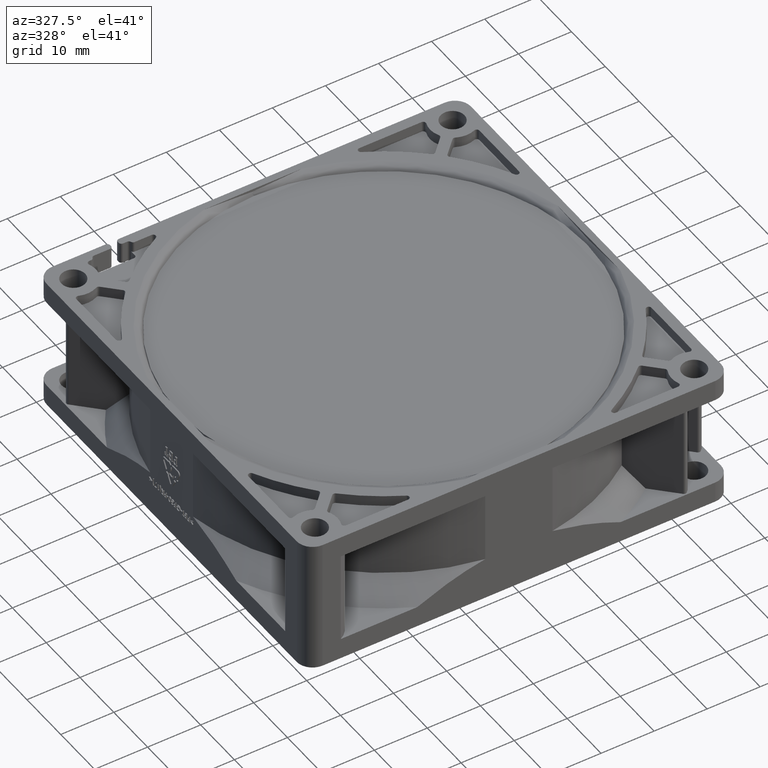
[diagram: clean part render]
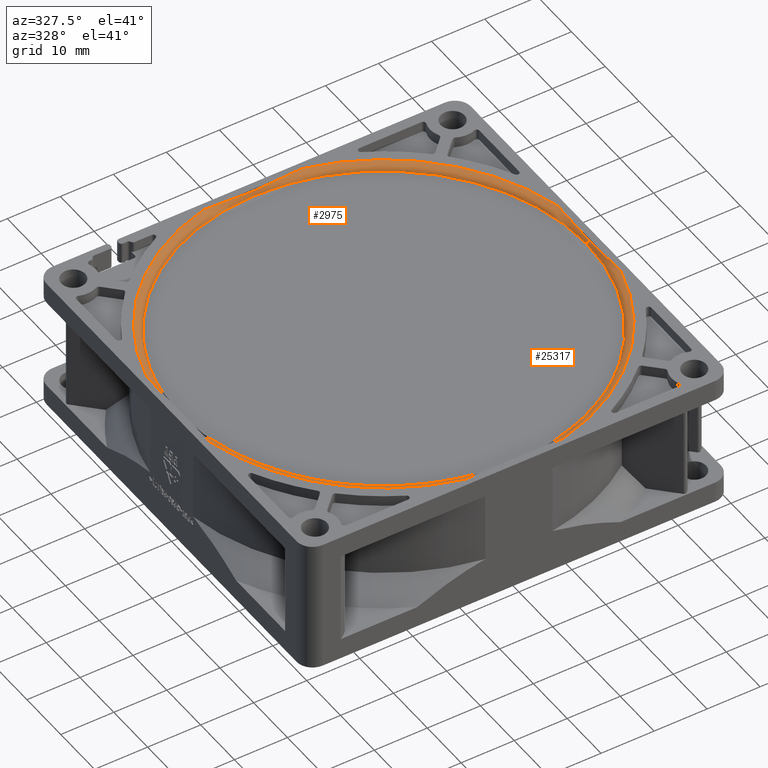
[diagram: same view with one multi-face feature highlighted, each face labeled with its STEP entity id]
A machine part, auxiliary view. The highlighted faces form ONE feature: a constant-radius fillet chain: 2 tangent blend faces with common blend radius 1.5 mm. The faces share edges in the B-rep.
Their STEP definitions:
[1] entity #2975 (Torus):
#365 = CARTESIAN_POINT ( 'NONE',  ( -3.258034867053625200, 38.69999999999997400, -0.3542504120716003000 ) ) ;
#480 = CARTESIAN_POINT ( 'NONE',  ( 1.340665072476778400, 38.69999999999998200, -0.4577314056132381600 ) ) ;
#599 = CARTESIAN_POINT ( 'NONE',  ( 6.109635771462917500, 38.69999999999998200, -0.1312076343806652700 ) ) ;
#1092 = ORIENTED_EDGE ( 'NONE', *, *, #4077, .T. ) ;
#1872 = CARTESIAN_POINT ( 'NONE',  ( 38.70000000000002400, 8.516450220362521900, 2.795208725939191100E-017 ) ) ;
#2362 = CARTESIAN_POINT ( 'NONE',  ( 38.70000000000002400, 5.418920404492308900, -0.1849911725634776300 ) ) ;
#2693 = AXIS2_PLACEMENT_3D ( 'NONE', #6830, #4238, #13223 ) ;
#2975 = ADVANCED_FACE ( 'NONE', ( #34482 ), #11353, .T. ) ;
#3445 = CARTESIAN_POINT ( 'NONE',  ( -38.69999999999997400, 7.740466828925725900, -3.194161244095965400E-015 ) ) ;
#3921 = DIRECTION ( 'NONE',  ( 1.000000000000000000, -8.881784197001252300E-016, 0.0000000000000000000 ) ) ;
#4077 = EDGE_CURVE ( 'NONE', #36626, #33623, #35030, .T. ) ;
#4238 = DIRECTION ( 'NONE',  ( 0.0000000000000000000, 0.0000000000000000000, 1.000000000000000000 ) ) ;
#4493 = CARTESIAN_POINT ( 'NONE',  ( -9.292470069900737400, 38.69999999999998200, 0.0000000000000000000 ) ) ;
#5078 = AXIS2_PLACEMENT_3D ( 'NONE', #23916, #32867, #3921 ) ;
#5547 = EDGE_CURVE ( 'NONE', #14881, #26321, #29705, .T. ) ;
#5650 = CARTESIAN_POINT ( 'NONE',  ( -38.69999999999997400, 0.04849910030040222000, -0.4801715099627396600 ) ) ;
#6179 = CARTESIAN_POINT ( 'NONE',  ( 0.1460072031836291400, 38.69999999999998200, -0.4800373347494401600 ) ) ;
#6258 = CARTESIAN_POINT ( 'NONE',  ( -38.69999999999998200, 4.739383112700255400E-015, -0.4801960972814547900 ) ) ;
#6379 = CARTESIAN_POINT ( 'NONE',  ( -38.69999999999998200, 0.9694945233602434400, -0.4677301955548452400 ) ) ;
#6531 = CARTESIAN_POINT ( 'NONE',  ( 0.0000000000000000000, 0.0000000000000000000, -1.500000000000000000 ) ) ;
#6704 = CARTESIAN_POINT ( 'NONE',  ( 38.70000000000002400, 9.292470069900554500, 0.0000000000000000000 ) ) ;
#6830 = CARTESIAN_POINT ( 'NONE',  ( 0.0000000000000000000, 0.0000000000000000000, -1.500000000000000000 ) ) ;
#7097 = CIRCLE ( 'NONE', #5078, 39.79999999999999700 ) ;
#7381 = DIRECTION ( 'NONE',  ( -1.000000000000000000, 1.224646799147354400E-016, 0.0000000000000000000 ) ) ;
#7925 = CARTESIAN_POINT ( 'NONE',  ( 38.70000000000002400, 3.872285616052768100, -0.3057899527935134000 ) ) ;
#8682 = CARTESIAN_POINT ( 'NONE',  ( 7.698382108292417300, 38.69999999999998900, -3.198396408832238900E-015 ) ) ;
#8760 = B_SPLINE_CURVE_WITH_KNOTS ( 'NONE', 3,
 ( #28896, #3445, #11907, #36619, #16845, #23296, #29006, #6379, #31756, #14727, #20427, #36755, #19685, #5650, #14132, #6258 ),
 .UNSPECIFIED., .F., .F.,
 ( 4, 2, 2, 2, 2, 1, 1, 2, 4 ),
 ( 0.05003844255664827200, 0.05445057701796646200, 0.05665664424862555700, 0.05775967786395510400, 0.05831119467161988100, 0.05858695307545226700, 0.05872483227736845900, 0.05879377187832655900, 0.05886271147928465200 ),
 .UNSPECIFIED. ) ;
#8800 = CARTESIAN_POINT ( 'NONE',  ( 9.292470069900675300, 38.69999999999998200, 0.0000000000000000000 ) ) ;
#8887 = CARTESIAN_POINT ( 'NONE',  ( 9.292470069900675300, 38.69999999999998200, 0.0000000000000000000 ) ) ;
#9138 = DIRECTION ( 'NONE',  ( 0.0000000000000000000, -1.000000000000000000, 0.0000000000000000000 ) ) ;
#9386 = CARTESIAN_POINT ( 'NONE',  ( -38.69999999999998200, 4.739383112700255400E-015, -0.4801960972814547900 ) ) ;
#9514 = DIRECTION ( 'NONE',  ( 1.000000000000000000, 0.0000000000000000000, 0.0000000000000000000 ) ) ;
#10303 = CIRCLE ( 'NONE', #21745, 38.29999999999999700 ) ;
#10694 = CARTESIAN_POINT ( 'NONE',  ( 38.70000000000003100, 1.550565181978010400, -0.4536331188122508200 ) ) ;
#10846 = ORIENTED_EDGE ( 'NONE', *, *, #23281, .F. ) ;
#11353 = TOROIDAL_SURFACE ( 'NONE', #2693, 39.79999999999999700, 1.500000000000000000 ) ;
#11560 = CARTESIAN_POINT ( 'NONE',  ( -1.749761578573276500, 38.69999999999998200, -0.4444141831759468900 ) ) ;
#11907 = CARTESIAN_POINT ( 'NONE',  ( -38.69999999999996700, 6.193531738328168500, -0.1244902158514861500 ) ) ;
#12295 = DIRECTION ( 'NONE',  ( 0.0000000000000000000, 0.0000000000000000000, 1.000000000000000000 ) ) ;
#13223 = DIRECTION ( 'NONE',  ( 1.000000000000000000, 0.0000000000000000000, 0.0000000000000000000 ) ) ;
#14132 = CARTESIAN_POINT ( 'NONE',  ( -38.69999999999998200, 0.02299599854013815300, -0.4801960972814260900 ) ) ;
#14409 = CARTESIAN_POINT ( 'NONE',  ( -0.9950577990559686900, 38.69999999999998200, -0.4743628569072036400 ) ) ;
#14605 = EDGE_CURVE ( 'NONE', #21907, #23139, #27534, .T. ) ;
#14727 = CARTESIAN_POINT ( 'NONE',  ( -38.69999999999999600, 0.4848732385102778600, -0.4770575460722602500 ) ) ;
#14758 = CARTESIAN_POINT ( 'NONE',  ( 3.726072529971128100, 38.69999999999998900, -0.3171194841000852200 ) ) ;
#14881 = VERTEX_POINT ( 'NONE', #9386 ) ;
#15301 = ORIENTED_EDGE ( 'NONE', *, *, #34448, .F. ) ;
#16021 = CARTESIAN_POINT ( 'NONE',  ( 38.70000000000003100, 6.192220242297635100, -0.1243046163826284200 ) ) ;
#16845 = CARTESIAN_POINT ( 'NONE',  ( -38.69999999999998200, 3.099352093352831300, -0.3658692131198464900 ) ) ;
#17369 = CARTESIAN_POINT ( 'NONE',  ( -4.011521150952588300, 38.69999999999998200, -0.2949095698550433000 ) ) ;
#17623 = CARTESIAN_POINT ( 'NONE',  ( 0.2456155492024766600, 38.69999999999998200, -0.4794932200373561200 ) ) ;
#17707 = DIRECTION ( 'NONE',  ( 0.0000000000000000000, 0.0000000000000000000, -1.000000000000000000 ) ) ;
#17855 = CARTESIAN_POINT ( 'NONE',  ( 38.70000000000002400, 1.710569414459005200E-043, -0.4801960972814097200 ) ) ;
#18663 = EDGE_LOOP ( 'NONE', ( #30208, #25216, #10846, #15301, #1092, #27206, #19329, #23835 ) ) ;
#18883 = CARTESIAN_POINT ( 'NONE',  ( 38.70000000000003800, 0.7757803307396098400, -0.4801960972813815200 ) ) ;
#19329 = ORIENTED_EDGE ( 'NONE', *, *, #36501, .T. ) ;
#19401 = AXIS2_PLACEMENT_3D ( 'NONE', #27527, #24648, #7381 ) ;
#19685 = CARTESIAN_POINT ( 'NONE',  ( -38.69999999999998200, 0.09699519897396874400, -0.4800731929516206500 ) ) ;
#19709 = VERTEX_POINT ( 'NONE', #29234 ) ;
#20155 = AXIS2_PLACEMENT_3D ( 'NONE', #36528, #25079, #27960 ) ;
#20231 = CARTESIAN_POINT ( 'NONE',  ( 1.738516167468610700, 38.69999999999998200, -0.4412520377543003300 ) ) ;
#20351 = CARTESIAN_POINT ( 'NONE',  ( -38.69999999999998200, 9.292470069900673500, 0.0000000000000000000 ) ) ;
#20427 = CARTESIAN_POINT ( 'NONE',  ( -38.69999999999998900, 0.3394447170548775000, -0.4788207543559367400 ) ) ;
#21740 = CARTESIAN_POINT ( 'NONE',  ( 38.70000000000002400, 9.292470069900554500, 0.0000000000000000000 ) ) ;
#21745 = AXIS2_PLACEMENT_3D ( 'NONE', #6531, #12295, #9514 ) ;
#21907 = VERTEX_POINT ( 'NONE', #20351 ) ;
#22501 = VERTEX_POINT ( 'NONE', #8887 ) ;
#23052 = B_SPLINE_CURVE_WITH_KNOTS ( 'NONE', 3,
 ( #8800, #8682, #599, #14758, #34535, #20231, #480, #34290, #23206, #17623, #6179, #26191, #28561, #14409, #11560, #365, #17369, #28691, #26076, #31542 ),
 .UNSPECIFIED., .F., .F.,
 ( 4, 2, 2, 2, 2, 2, 2, 2, 2, 4 ),
 ( 0.05003844255664587100, 0.05457021816386915800, 0.05683610596748080200, 0.05796904986928662400, 0.05853552182018953400, 0.05881875779564099000, 0.05910199377109244500, 0.06136788157470408900, 0.06363376937831573300, 0.06816554498553902000 ),
 .UNSPECIFIED. ) ;
#23139 = VERTEX_POINT ( 'NONE', #4493 ) ;
#23206 = CARTESIAN_POINT ( 'NONE',  ( 0.5443903685732325300, 38.69999999999998200, -0.4766273420538970600 ) ) ;
#23281 = EDGE_CURVE ( 'NONE', #19709, #26321, #10303, .T. ) ;
#23296 = CARTESIAN_POINT ( 'NONE',  ( -38.69999999999998200, 1.938028964784603600, -0.4316815666934381600 ) ) ;
#23697 = AXIS2_PLACEMENT_3D ( 'NONE', #33997, #9138, #17707 ) ;
#23835 = ORIENTED_EDGE ( 'NONE', *, *, #14605, .F. ) ;
#23916 = CARTESIAN_POINT ( 'NONE',  ( 0.0000000000000000000, 0.0000000000000000000, 0.0000000000000000000 ) ) ;
#24199 = EDGE_CURVE ( 'NONE', #22501, #33623, #7097, .T. ) ;
#24648 = DIRECTION ( 'NONE',  ( 1.224646799147353200E-016, 1.000000000000000000, -0.0000000000000000000 ) ) ;
#25079 = DIRECTION ( 'NONE',  ( -0.0000000000000000000, -0.0000000000000000000, -1.000000000000000000 ) ) ;
#25216 = ORIENTED_EDGE ( 'NONE', *, *, #5547, .T. ) ;
#26076 = CARTESIAN_POINT ( 'NONE',  ( -7.780351069817072600, 38.69999999999998200, -3.049318610115481800E-017 ) ) ;
#26191 = CARTESIAN_POINT ( 'NONE',  ( -0.05324330616597065100, 38.69999999999997400, -0.4802949012798314300 ) ) ;
#26321 = VERTEX_POINT ( 'NONE', #28970 ) ;
#27206 = ORIENTED_EDGE ( 'NONE', *, *, #24199, .F. ) ;
#27527 = CARTESIAN_POINT ( 'NONE',  ( -39.79999999999999700, 4.874094260606465500E-015, -1.500000000000000000 ) ) ;
#27534 = CIRCLE ( 'NONE', #20155, 39.79999999999999700 ) ;
#27960 = DIRECTION ( 'NONE',  ( 1.000000000000000000, 0.0000000000000000000, 0.0000000000000000000 ) ) ;
#28561 = CARTESIAN_POINT ( 'NONE',  ( -0.1449656682984215300, 38.69999999999997400, -0.4800272253508475800 ) ) ;
#28691 = CARTESIAN_POINT ( 'NONE',  ( -6.271801699152228500, 38.69999999999998900, -0.1183864861728941000 ) ) ;
#28896 = CARTESIAN_POINT ( 'NONE',  ( -38.69999999999998200, 9.292470069900673500, 0.0000000000000000000 ) ) ;
#28970 = CARTESIAN_POINT ( 'NONE',  ( -38.29999999999999700, 4.782245750670414200E-015, -1.500000000000000000 ) ) ;
#29006 = CARTESIAN_POINT ( 'NONE',  ( -38.69999999999998200, 1.550754518339413100, -0.4495234181252771900 ) ) ;
#29234 = CARTESIAN_POINT ( 'NONE',  ( 38.29999999999999700, 0.0000000000000000000, -1.500000000000000000 ) ) ;
#29705 = CIRCLE ( 'NONE', #19401, 1.500000000000001300 ) ;
#30208 = ORIENTED_EDGE ( 'NONE', *, *, #34460, .T. ) ;
#31542 = CARTESIAN_POINT ( 'NONE',  ( -9.292470069900737400, 38.69999999999998200, 0.0000000000000000000 ) ) ;
#31756 = CARTESIAN_POINT ( 'NONE',  ( -38.69999999999998200, 0.7756835213261515900, -0.4723825498701945100 ) ) ;
#32867 = DIRECTION ( 'NONE',  ( -0.0000000000000000000, -0.0000000000000000000, -1.000000000000000000 ) ) ;
#33057 = CARTESIAN_POINT ( 'NONE',  ( 38.70000000000002400, 1.710569414459005200E-043, -0.4801960972814097200 ) ) ;
#33432 = CARTESIAN_POINT ( 'NONE',  ( 38.70000000000001000, 3.098838104993729900, -0.3659044152975894900 ) ) ;
#33623 = VERTEX_POINT ( 'NONE', #6704 ) ;
#33997 = CARTESIAN_POINT ( 'NONE',  ( 39.79999999999999700, 0.0000000000000000000, -1.500000000000000000 ) ) ;
#34290 = CARTESIAN_POINT ( 'NONE',  ( 0.7435064138925247000, 38.69999999999998200, -0.4730669026979544300 ) ) ;
#34448 = EDGE_CURVE ( 'NONE', #36626, #19709, #36371, .T. ) ;
#34460 = EDGE_CURVE ( 'NONE', #21907, #14881, #8760, .T. ) ;
#34482 = FACE_OUTER_BOUND ( 'NONE', #18663, .T. ) ;
#34535 = CARTESIAN_POINT ( 'NONE',  ( 2.931501494433130800, 38.69999999999998200, -0.3778630428038189900 ) ) ;
#35030 = B_SPLINE_CURVE_WITH_KNOTS ( 'NONE', 3,
 ( #33057, #18883, #10694, #33432, #7925, #2362, #16021, #35931, #1872, #21740 ),
 .UNSPECIFIED., .F., .F.,
 ( 4, 2, 2, 2, 4 ),
 ( 1.266250760004596000E-017, 0.002325708376564934700, 0.004651416753129857300, 0.006977125129694780800, 0.009302833506259704200 ),
 .UNSPECIFIED. ) ;
#35931 = CARTESIAN_POINT ( 'NONE',  ( 38.70000000000001700, 7.740602243440545000, -0.03208457584118536800 ) ) ;
#36371 = CIRCLE ( 'NONE', #23697, 1.500000000000000000 ) ;
#36501 = EDGE_CURVE ( 'NONE', #22501, #23139, #23052, .T. ) ;
#36528 = CARTESIAN_POINT ( 'NONE',  ( 0.0000000000000000000, 0.0000000000000000000, 0.0000000000000000000 ) ) ;
#36619 = CARTESIAN_POINT ( 'NONE',  ( -38.69999999999998200, 3.872905851065514300, -0.3057417617782138800 ) ) ;
#36626 = VERTEX_POINT ( 'NONE', #17855 ) ;
#36755 = CARTESIAN_POINT ( 'NONE',  ( -38.69999999999998900, 0.1697363464179297800, -0.4798520137897057700 ) ) ;
[2] entity #25317 (Torus):
#316 = AXIS2_PLACEMENT_3D ( 'NONE', #36691, #22494, #2639 ) ;
#690 = ORIENTED_EDGE ( 'NONE', *, *, #22144, .T. ) ;
#1126 = VERTEX_POINT ( 'NONE', #27517 ) ;
#1449 = CARTESIAN_POINT ( 'NONE',  ( -38.69999999999997400, -3.872285616052871600, -0.3057899527935368800 ) ) ;
#1474 = CIRCLE ( 'NONE', #23419, 39.79999999999999700 ) ;
#1847 = CARTESIAN_POINT ( 'NONE',  ( 38.70000000000002400, 1.710569414459005200E-043, -0.4801960972814097200 ) ) ;
#2109 = CARTESIAN_POINT ( 'NONE',  ( 38.70000000000002400, -0.1697363464179701400, -0.4798520137896605800 ) ) ;
#2639 = DIRECTION ( 'NONE',  ( 1.000000000000000000, 0.0000000000000000000, 0.0000000000000000000 ) ) ;
#3575 = CARTESIAN_POINT ( 'NONE',  ( 0.0000000000000000000, 0.0000000000000000000, -1.500000000000000000 ) ) ;
#3621 = ORIENTED_EDGE ( 'NONE', *, *, #5547, .F. ) ;
#3765 = CARTESIAN_POINT ( 'NONE',  ( -1.738516167472997900, -38.70000000000003100, -0.4412520377540596300 ) ) ;
#3896 = CARTESIAN_POINT ( 'NONE',  ( 3.258034867050201300, -38.70000000000003100, -0.3542504120718232800 ) ) ;
#4360 = EDGE_CURVE ( 'NONE', #26321, #19709, #16149, .T. ) ;
#4448 = DIRECTION ( 'NONE',  ( 0.0000000000000000000, 0.0000000000000000000, 1.000000000000000000 ) ) ;
#4530 = CARTESIAN_POINT ( 'NONE',  ( -38.69999999999997400, -5.418920404492430600, -0.1849911725634912900 ) ) ;
#4886 = EDGE_CURVE ( 'NONE', #36533, #27564, #1474, .T. ) ;
#5050 = CARTESIAN_POINT ( 'NONE',  ( 38.70000000000003100, -3.872905851065472600, -0.3057417617781862400 ) ) ;
#5547 = EDGE_CURVE ( 'NONE', #14881, #26321, #29705, .T. ) ;
#5758 = B_SPLINE_CURVE_WITH_KNOTS ( 'NONE', 3,
 ( #6350, #29229, #14959, #26371, #23403, #3765, #32097, #17925, #9475, #26130, #34829, #20779, #35085, #12114, #14825, #3896, #23635, #6607, #12498, #28977 ),
 .UNSPECIFIED., .F., .F.,
 ( 4, 2, 2, 2, 2, 2, 2, 2, 2, 4 ),
 ( 0.05003844255665179000, 0.05457021816387751200, 0.05683610596749037700, 0.05796904986929681000, 0.05853552182020002600, 0.05881875779565162700, 0.05910199377110324200, 0.06136788157471610000, 0.06363376937832895800, 0.06816554498555468800 ),
 .UNSPECIFIED. ) ;
#6350 = CARTESIAN_POINT ( 'NONE',  ( -9.292470069900540300, -38.70000000000002400, 0.0000000000000000000 ) ) ;
#6354 = CARTESIAN_POINT ( 'NONE',  ( 0.0000000000000000000, 0.0000000000000000000, 0.0000000000000000000 ) ) ;
#6607 = CARTESIAN_POINT ( 'NONE',  ( 6.271801699150422800, -38.70000000000001700, -0.1183864861730176400 ) ) ;
#6657 = TOROIDAL_SURFACE ( 'NONE', #18205, 39.79999999999999700, 1.500000000000000000 ) ;
#7381 = DIRECTION ( 'NONE',  ( -1.000000000000000000, 1.224646799147354400E-016, 0.0000000000000000000 ) ) ;
#7884 = B_SPLINE_CURVE_WITH_KNOTS ( 'NONE', 3,
 ( #33286, #32913, #13191, #5050, #13309, #36140, #10789, #19101, #27821, #33411, #27319, #2109, #21964, #22093, #24948, #1847 ),
 .UNSPECIFIED., .F., .F.,
 ( 4, 2, 2, 2, 2, 1, 1, 2, 4 ),
 ( 0.05003844255665135200, 0.05445057701797293600, 0.05665664424863373100, 0.05775967786396412500, 0.05831119467162931800, 0.05858695307546191900, 0.05872483227737822200, 0.05879377187833637100, 0.05886271147929451900 ),
 .UNSPECIFIED. ) ;
#8434 = FACE_OUTER_BOUND ( 'NONE', #9870, .T. ) ;
#8927 = ORIENTED_EDGE ( 'NONE', *, *, #4360, .F. ) ;
#9138 = DIRECTION ( 'NONE',  ( 0.0000000000000000000, -1.000000000000000000, 0.0000000000000000000 ) ) ;
#9386 = CARTESIAN_POINT ( 'NONE',  ( -38.69999999999998200, 4.739383112700255400E-015, -0.4801960972814547900 ) ) ;
#9475 = CARTESIAN_POINT ( 'NONE',  ( -0.5443903685783609800, -38.70000000000003100, -0.4766273420537700500 ) ) ;
#9542 = CARTESIAN_POINT ( 'NONE',  ( 38.70000000000002400, -9.292470069900547400, 0.0000000000000000000 ) ) ;
#9870 = EDGE_LOOP ( 'NONE', ( #3621, #24659, #22769, #33282, #26137, #690, #20079, #8927 ) ) ;
#10391 = CARTESIAN_POINT ( 'NONE',  ( -38.69999999999998900, -8.516450220362687100, 3.783413831069208600E-017 ) ) ;
#10641 = CARTESIAN_POINT ( 'NONE',  ( -38.69999999999998200, -9.292470069900730300, 0.0000000000000000000 ) ) ;
#10789 = CARTESIAN_POINT ( 'NONE',  ( 38.70000000000003100, -1.550754518339397400, -0.4495234181252353900 ) ) ;
#11023 = B_SPLINE_CURVE_WITH_KNOTS ( 'NONE', 3,
 ( #24048, #35624, #32628, #18462, #1449, #4530, #12906, #27916, #10391, #10641 ),
 .UNSPECIFIED., .F., .F.,
 ( 4, 2, 2, 2, 4 ),
 ( 2.983298428599172200E-017, 0.002325708376564982400, 0.004651416753129935400, 0.006977125129694888300, 0.009302833506259843000 ),
 .UNSPECIFIED. ) ;
#12114 = CARTESIAN_POINT ( 'NONE',  ( 0.9950577990513174200, -38.70000000000003100, -0.4743628569072951800 ) ) ;
#12498 = CARTESIAN_POINT ( 'NONE',  ( 7.780351069816080500, -38.70000000000002400, -1.900741933638649200E-015 ) ) ;
#12906 = CARTESIAN_POINT ( 'NONE',  ( -38.69999999999998200, -6.192220242297768400, -0.1243046163826343500 ) ) ;
#13191 = CARTESIAN_POINT ( 'NONE',  ( 38.70000000000001700, -6.193531738328117000, -0.1244902158514724400 ) ) ;
#13309 = CARTESIAN_POINT ( 'NONE',  ( 38.70000000000002400, -3.099352093352789600, -0.3658692131198118500 ) ) ;
#13913 = AXIS2_PLACEMENT_3D ( 'NONE', #3575, #17363, #20336 ) ;
#14825 = CARTESIAN_POINT ( 'NONE',  ( 1.749761578569037000, -38.70000000000002400, -0.4444141831761171400 ) ) ;
#14881 = VERTEX_POINT ( 'NONE', #9386 ) ;
#14959 = CARTESIAN_POINT ( 'NONE',  ( -6.109635771464717800, -38.70000000000001700, -0.1312076343805048100 ) ) ;
#16149 = CIRCLE ( 'NONE', #13913, 38.29999999999999700 ) ;
#16604 = CIRCLE ( 'NONE', #316, 39.79999999999999700 ) ;
#17363 = DIRECTION ( 'NONE',  ( 0.0000000000000000000, 0.0000000000000000000, 1.000000000000000000 ) ) ;
#17685 = DIRECTION ( 'NONE',  ( 1.000000000000000000, 0.0000000000000000000, 0.0000000000000000000 ) ) ;
#17707 = DIRECTION ( 'NONE',  ( 0.0000000000000000000, 0.0000000000000000000, -1.000000000000000000 ) ) ;
#17855 = CARTESIAN_POINT ( 'NONE',  ( 38.70000000000002400, 1.710569414459005200E-043, -0.4801960972814097200 ) ) ;
#17925 = CARTESIAN_POINT ( 'NONE',  ( -0.7435064138975275800, -38.70000000000003100, -0.4730669026978005000 ) ) ;
#18205 = AXIS2_PLACEMENT_3D ( 'NONE', #18503, #4448, #32915 ) ;
#18462 = CARTESIAN_POINT ( 'NONE',  ( -38.69999999999998200, -3.098838104993827200, -0.3659044152976241900 ) ) ;
#18503 = CARTESIAN_POINT ( 'NONE',  ( 0.0000000000000000000, 0.0000000000000000000, -1.500000000000000000 ) ) ;
#19101 = CARTESIAN_POINT ( 'NONE',  ( 38.70000000000003100, -0.9694945233602432200, -0.4677301955548012200 ) ) ;
#19401 = AXIS2_PLACEMENT_3D ( 'NONE', #27527, #24648, #7381 ) ;
#19709 = VERTEX_POINT ( 'NONE', #29234 ) ;
#20079 = ORIENTED_EDGE ( 'NONE', *, *, #34448, .T. ) ;
#20336 = DIRECTION ( 'NONE',  ( 1.000000000000000000, 0.0000000000000000000, 0.0000000000000000000 ) ) ;
#20779 = CARTESIAN_POINT ( 'NONE',  ( 0.05324330616046225900, -38.70000000000003100, -0.4802949012797904600 ) ) ;
#21711 = EDGE_CURVE ( 'NONE', #28878, #1126, #16604, .T. ) ;
#21964 = CARTESIAN_POINT ( 'NONE',  ( 38.70000000000003100, -0.09699519897400503400, -0.4800731929515755200 ) ) ;
#22093 = CARTESIAN_POINT ( 'NONE',  ( 38.70000000000002400, -0.04849910030044041900, -0.4801715099626946400 ) ) ;
#22144 = EDGE_CURVE ( 'NONE', #36533, #36626, #7884, .T. ) ;
#22494 = DIRECTION ( 'NONE',  ( -0.0000000000000000000, -0.0000000000000000000, -1.000000000000000000 ) ) ;
#22769 = ORIENTED_EDGE ( 'NONE', *, *, #21711, .F. ) ;
#23403 = CARTESIAN_POINT ( 'NONE',  ( -2.931501494436794500, -38.70000000000002400, -0.3778630428035249500 ) ) ;
#23419 = AXIS2_PLACEMENT_3D ( 'NONE', #6354, #26258, #17685 ) ;
#23635 = CARTESIAN_POINT ( 'NONE',  ( 4.011521150949576500, -38.70000000000001700, -0.2949095698552523500 ) ) ;
#23697 = AXIS2_PLACEMENT_3D ( 'NONE', #33997, #9138, #17707 ) ;
#24048 = CARTESIAN_POINT ( 'NONE',  ( -38.69999999999998200, 4.739383112700255400E-015, -0.4801960972814547900 ) ) ;
#24648 = DIRECTION ( 'NONE',  ( 1.224646799147353200E-016, 1.000000000000000000, -0.0000000000000000000 ) ) ;
#24659 = ORIENTED_EDGE ( 'NONE', *, *, #25968, .T. ) ;
#24948 = CARTESIAN_POINT ( 'NONE',  ( 38.70000000000003100, -0.02299599854019360500, -0.4801960972813813000 ) ) ;
#25317 = ADVANCED_FACE ( 'NONE', ( #8434 ), #6657, .T. ) ;
#25399 = CARTESIAN_POINT ( 'NONE',  ( -9.292470069900540300, -38.70000000000002400, 0.0000000000000000000 ) ) ;
#25968 = EDGE_CURVE ( 'NONE', #14881, #1126, #11023, .T. ) ;
#26130 = CARTESIAN_POINT ( 'NONE',  ( -0.2456155492077948300, -38.70000000000002400, -0.4794932200372703500 ) ) ;
#26137 = ORIENTED_EDGE ( 'NONE', *, *, #4886, .F. ) ;
#26258 = DIRECTION ( 'NONE',  ( -0.0000000000000000000, -0.0000000000000000000, -1.000000000000000000 ) ) ;
#26321 = VERTEX_POINT ( 'NONE', #28970 ) ;
#26371 = CARTESIAN_POINT ( 'NONE',  ( -3.726072529974327400, -38.70000000000003100, -0.3171194840998101700 ) ) ;
#27319 = CARTESIAN_POINT ( 'NONE',  ( 38.70000000000002400, -0.3394447170549021500, -0.4788207543558921600 ) ) ;
#27517 = CARTESIAN_POINT ( 'NONE',  ( -38.69999999999998200, -9.292470069900730300, 0.0000000000000000000 ) ) ;
#27527 = CARTESIAN_POINT ( 'NONE',  ( -39.79999999999999700, 4.874094260606465500E-015, -1.500000000000000000 ) ) ;
#27564 = VERTEX_POINT ( 'NONE', #35889 ) ;
#27821 = CARTESIAN_POINT ( 'NONE',  ( 38.70000000000003100, -0.7756835213261448200, -0.4723825498701498300 ) ) ;
#27916 = CARTESIAN_POINT ( 'NONE',  ( -38.69999999999998900, -7.740602243440697800, -0.03208457584118433500 ) ) ;
#27942 = EDGE_CURVE ( 'NONE', #28878, #27564, #5758, .T. ) ;
#28878 = VERTEX_POINT ( 'NONE', #25399 ) ;
#28970 = CARTESIAN_POINT ( 'NONE',  ( -38.29999999999999700, 4.782245750670414200E-015, -1.500000000000000000 ) ) ;
#28977 = CARTESIAN_POINT ( 'NONE',  ( 9.292470069900558000, -38.70000000000002400, 0.0000000000000000000 ) ) ;
#29229 = CARTESIAN_POINT ( 'NONE',  ( -7.698382108293293100, -38.70000000000002400, -1.509412712007162600E-015 ) ) ;
#29234 = CARTESIAN_POINT ( 'NONE',  ( 38.29999999999999700, 0.0000000000000000000, -1.500000000000000000 ) ) ;
#29705 = CIRCLE ( 'NONE', #19401, 1.500000000000001300 ) ;
#32097 = CARTESIAN_POINT ( 'NONE',  ( -1.340665072481408400, -38.70000000000003100, -0.4577314056130191700 ) ) ;
#32628 = CARTESIAN_POINT ( 'NONE',  ( -38.69999999999998200, -1.550565181978085900, -0.4536331188122956200 ) ) ;
#32913 = CARTESIAN_POINT ( 'NONE',  ( 38.70000000000002400, -7.740466828925665500, 4.269046054161672200E-016 ) ) ;
#32915 = DIRECTION ( 'NONE',  ( 1.000000000000000000, 0.0000000000000000000, 0.0000000000000000000 ) ) ;
#33282 = ORIENTED_EDGE ( 'NONE', *, *, #27942, .T. ) ;
#33286 = CARTESIAN_POINT ( 'NONE',  ( 38.70000000000002400, -9.292470069900547400, 0.0000000000000000000 ) ) ;
#33411 = CARTESIAN_POINT ( 'NONE',  ( 38.70000000000003800, -0.4848732385102807500, -0.4770575460722150700 ) ) ;
#33997 = CARTESIAN_POINT ( 'NONE',  ( 39.79999999999999700, 0.0000000000000000000, -1.500000000000000000 ) ) ;
#34448 = EDGE_CURVE ( 'NONE', #36626, #19709, #36371, .T. ) ;
#34829 = CARTESIAN_POINT ( 'NONE',  ( -0.1460072031890098100, -38.70000000000003100, -0.4800373347493691600 ) ) ;
#35085 = CARTESIAN_POINT ( 'NONE',  ( 0.1449656682933087900, -38.70000000000001700, -0.4800272253508224300 ) ) ;
#35624 = CARTESIAN_POINT ( 'NONE',  ( -38.69999999999998200, -0.7757803307396575800, -0.4801960972814254800 ) ) ;
#35889 = CARTESIAN_POINT ( 'NONE',  ( 9.292470069900558000, -38.70000000000002400, 0.0000000000000000000 ) ) ;
#36140 = CARTESIAN_POINT ( 'NONE',  ( 38.70000000000003100, -1.938028964784580100, -0.4316815666933965800 ) ) ;
#36371 = CIRCLE ( 'NONE', #23697, 1.500000000000000000 ) ;
#36533 = VERTEX_POINT ( 'NONE', #9542 ) ;
#36626 = VERTEX_POINT ( 'NONE', #17855 ) ;
#36691 = CARTESIAN_POINT ( 'NONE',  ( 0.0000000000000000000, 0.0000000000000000000, 0.0000000000000000000 ) ) ;